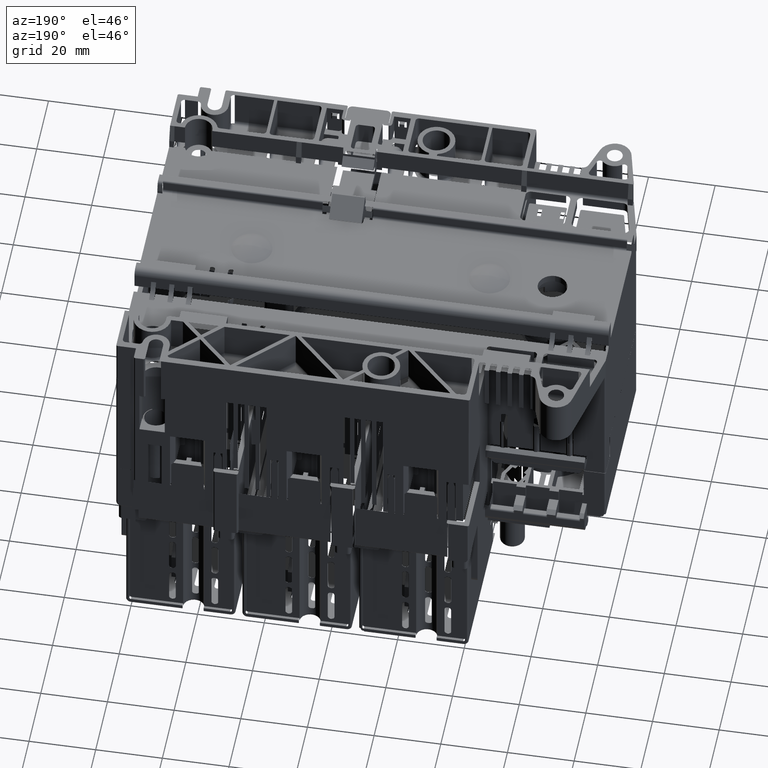
[diagram: clean part render]
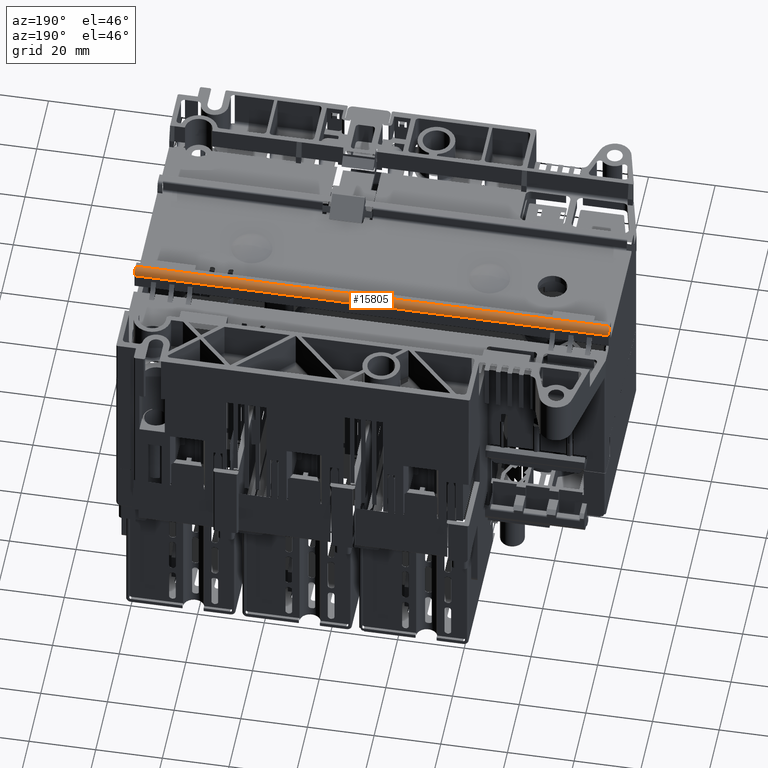
[diagram: same view with one face highlighted and labeled with its STEP entity id]
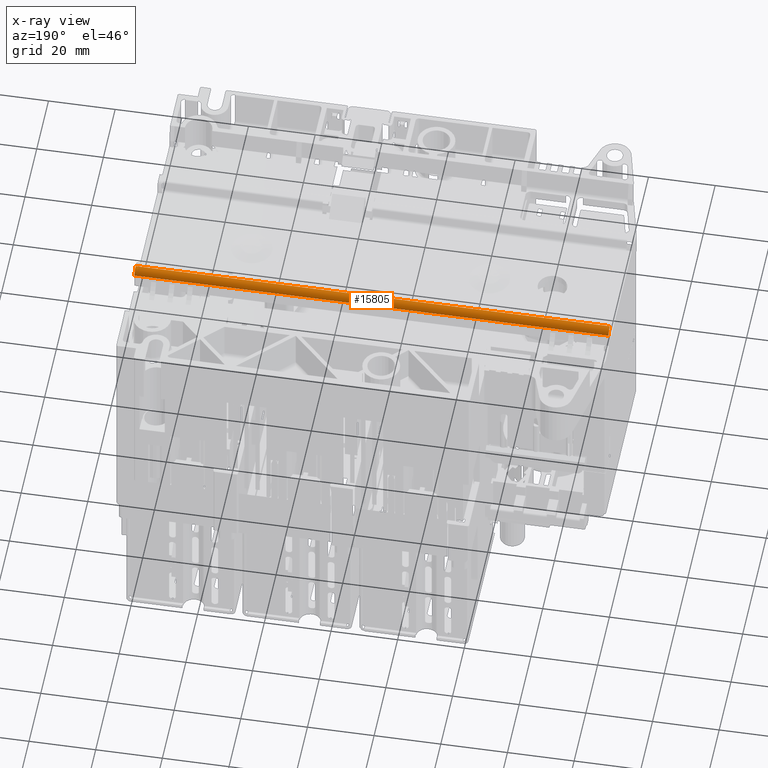
[diagram: x-ray of the same camera — body ghosted, the highlighted face saturated]
A machine part, auxiliary view. The second image highlights one B-rep face of the part: STEP entity #15805.
The next image is the same camera in x-ray: the body ghosted, the highlighted face saturated — about 0% of this face is hidden behind the body in this view.
In plain terms, the highlighted cylindrical surface (edge-blend (fillet) strip) has radius 2 mm, axis along (-1, 0, 0).
Its self-contained STEP definition (entity closure, byte-faithful):
#2228=CARTESIAN_POINT('',(8.094549124812E1,4.338538872861E2,1.904960777370E2));
#2229=DIRECTION('',(1.E0,0.E0,0.E0));
#2230=DIRECTION('',(0.E0,1.E0,-3.410320914549E-10));
#2231=AXIS2_PLACEMENT_3D('',#2228,#2229,#2230);
#5112=DIRECTION('',(-1.E0,3.842175736364E-12,0.E0));
#5113=VECTOR('',#5112,1.422499931937E2);
#5114=CARTESIAN_POINT('',(2.231955122959E2,4.338538889563E2,1.924960774716E2));
#5115=LINE('',#5114,#5113);
#5116=DIRECTION('',(1.E0,-6.937095114412E-13,-3.794223393510E-12));
#5117=VECTOR('',#5116,1.422499958770E2);
#5118=CARTESIAN_POINT('',(8.094549124812E1,4.358538872861E2,1.904960777368E2));
#5119=LINE('',#5118,#5117);
#5150=CARTESIAN_POINT('',(2.231955062758E2,4.338538872861E2,1.904960777370E2));
#5151=DIRECTION('',(-1.E0,0.E0,0.E0));
#5152=DIRECTION('',(0.E0,2.505284385275E-6,9.999999999969E-1));
#5153=AXIS2_PLACEMENT_3D('',#5150,#5151,#5152);
#14166=CARTESIAN_POINT('',(8.094549124812E1,4.358538872861E2,1.904960777368E2));
#14167=VERTEX_POINT('',#14166);
#14168=CARTESIAN_POINT('',(8.094549124812E1,4.338538922983E2,1.924960777370E2));
#14169=VERTEX_POINT('',#14168);
#14174=CARTESIAN_POINT('',(2.231954871251E2,4.358538872860E2,1.904960777362E2));
#14175=VERTEX_POINT('',#14174);
#14176=CARTESIAN_POINT('',(2.231955062758E2,4.338538922967E2,1.924960777370E2));
#14177=VERTEX_POINT('',#14176);
#15792=CARTESIAN_POINT('',(1.520704987619E2,4.338538872861E2,1.904960777370E2));
#15793=DIRECTION('',(-1.E0,0.E0,0.E0));
#15794=DIRECTION('',(0.E0,1.392663762088E-12,1.E0));
#15795=AXIS2_PLACEMENT_3D('',#15792,#15793,#15794);
#15796=CYLINDRICAL_SURFACE('',#15795,2.000000000003E0);
#15798=ORIENTED_EDGE('',*,*,#15797,.F.);
#15800=ORIENTED_EDGE('',*,*,#15799,.T.);
#15801=ORIENTED_EDGE('',*,*,#14244,.F.);
#15802=ORIENTED_EDGE('',*,*,#15735,.T.);
#15803=EDGE_LOOP('',(#15798,#15800,#15801,#15802));
#15804=FACE_OUTER_BOUND('',#15803,.F.);
#15805=ADVANCED_FACE('',(#15804),#15796,.T.);
#2232=CIRCLE('',#2231,2.000000000003E0);
#5154=CIRCLE('',#5153,2.000000000003E0);
#14244=EDGE_CURVE('',#14167,#14169,#2232,.T.);
#15735=EDGE_CURVE('',#14167,#14175,#5119,.T.);
#15797=EDGE_CURVE('',#14177,#14175,#5154,.T.);
#15799=EDGE_CURVE('',#14177,#14169,#5115,.T.);